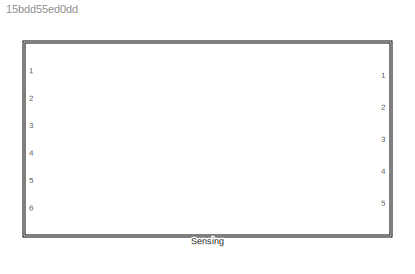
MODEL slx_15bdd55ed0dd
KIND model
CONFIG AbsTol = auto
CONFIG EnableMultiTasking = on
CONFIG FixedStep = 1e-3
CONFIG MaxStep = auto
CONFIG MinStep = auto
CONFIG RelTol = 1e-3
CONFIG SampleTimeConstraint = Unconstrained
CONFIG Solver = FixedStepAuto
CONFIG SolverName = FixedStepAuto
CONFIG StartTime = 0.0
CONFIG StopTime = 1
WORKSPACE source: mxarray member
WORKSPACE duty_cycle = 5
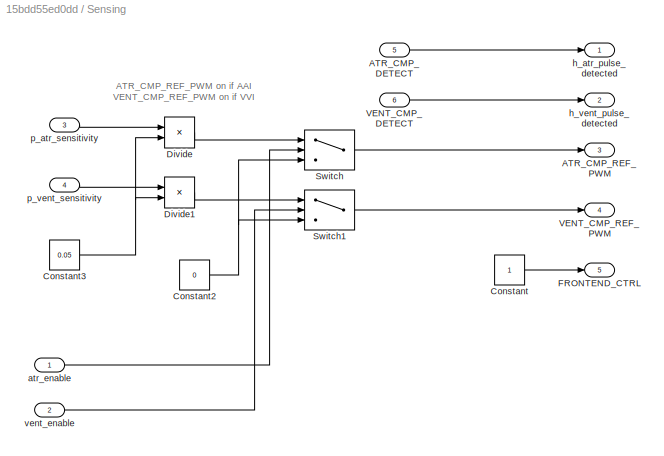
BLOCK [SubSystem] Sensing
  Ports = [6, 5]
  RequestExecContextInheritance = off
BLOCK [Inport] Sensing/ATR_CMP_DETECT
  Port = 5
BLOCK [Outport] Sensing/ATR_CMP_REF_PWM
  Port = 3
BLOCK [Constant] Sensing/Constant
  OutDataTypeStr = boolean
BLOCK [Constant] Sensing/Constant2
  Value = 0
BLOCK [Constant] Sensing/Constant3
  Value = 0.05
BLOCK [Product] Sensing/Divide
  Inputs = */
  Ports = [2, 1]
BLOCK [Product] Sensing/Divide1
  Inputs = */
  Ports = [2, 1]
BLOCK [Outport] Sensing/FRONTEND_CTRL
  Port = 5
BLOCK [Switch] Sensing/Switch
  Criteria = u2 > Threshold
  InputSameDT = off
  SaturateOnIntegerOverflow = off
BLOCK [Switch] Sensing/Switch1
  Criteria = u2 > Threshold
  InputSameDT = off
  SaturateOnIntegerOverflow = off
BLOCK [Inport] Sensing/VENT_CMP_DETECT
  Port = 6
BLOCK [Outport] Sensing/VENT_CMP_REF_PWM
  Port = 4
BLOCK [Inport] Sensing/atr_enable
BLOCK [Outport] Sensing/h_atr_pulse_detected
BLOCK [Outport] Sensing/h_vent_pulse_detected
  Port = 2
BLOCK [Inport] Sensing/p_atr_sensitivity
  Port = 3
BLOCK [Inport] Sensing/p_vent_sensitivity
  Port = 4
BLOCK [Inport] Sensing/vent_enable
  Port = 2
ANNOTATION Sensing: ATR_CMP_REF_PWM on if AAI VENT_CMP_REF_PWM on if VVI
LINE Sensing/ATR_CMP_DETECT:1 -> Sensing/h_atr_pulse_detected:1
NET Sensing/Constant2:1 -> Sensing/Switch1:3, Sensing/Switch:3
NET Sensing/Constant3:1 -> Sensing/Divide1:2, Sensing/Divide:2
LINE Sensing/Constant:1 -> Sensing/FRONTEND_CTRL:1
LINE Sensing/Divide1:1 -> Sensing/Switch1:1
LINE Sensing/Divide:1 -> Sensing/Switch:1
LINE Sensing/Switch1:1 -> Sensing/VENT_CMP_REF_PWM:1
LINE Sensing/Switch:1 -> Sensing/ATR_CMP_REF_PWM:1
LINE Sensing/VENT_CMP_DETECT:1 -> Sensing/h_vent_pulse_detected:1
LINE Sensing/atr_enable:1 -> Sensing/Switch:2
LINE Sensing/p_atr_sensitivity:1 -> Sensing/Divide:1
LINE Sensing/p_vent_sensitivity:1 -> Sensing/Divide1:1
LINE Sensing/vent_enable:1 -> Sensing/Switch1:2
note: NET lines group one-source signal fan-out (src -> all destinations, sorted); 1:1 wires keep LINE
